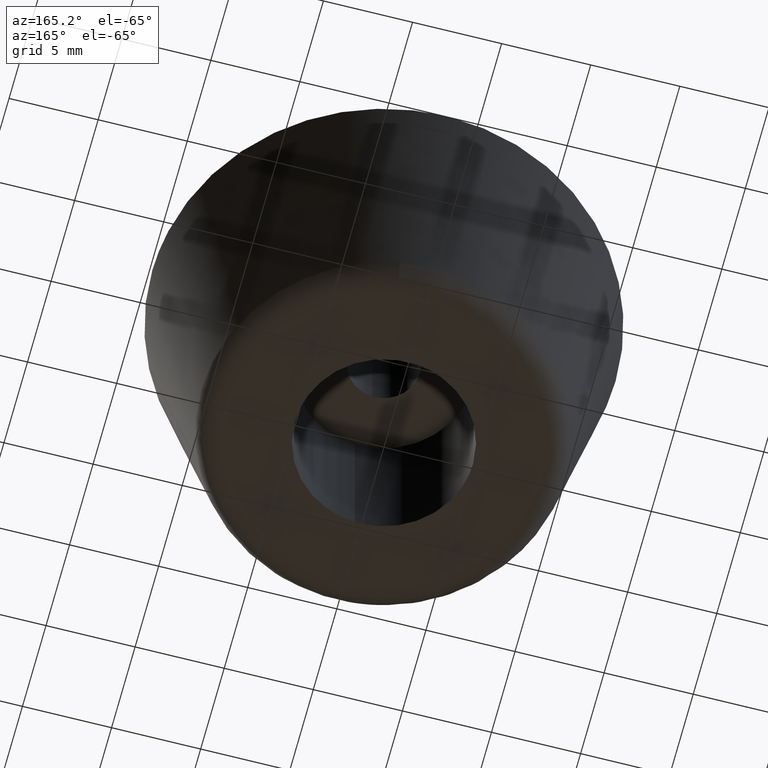
[diagram: clean part render]
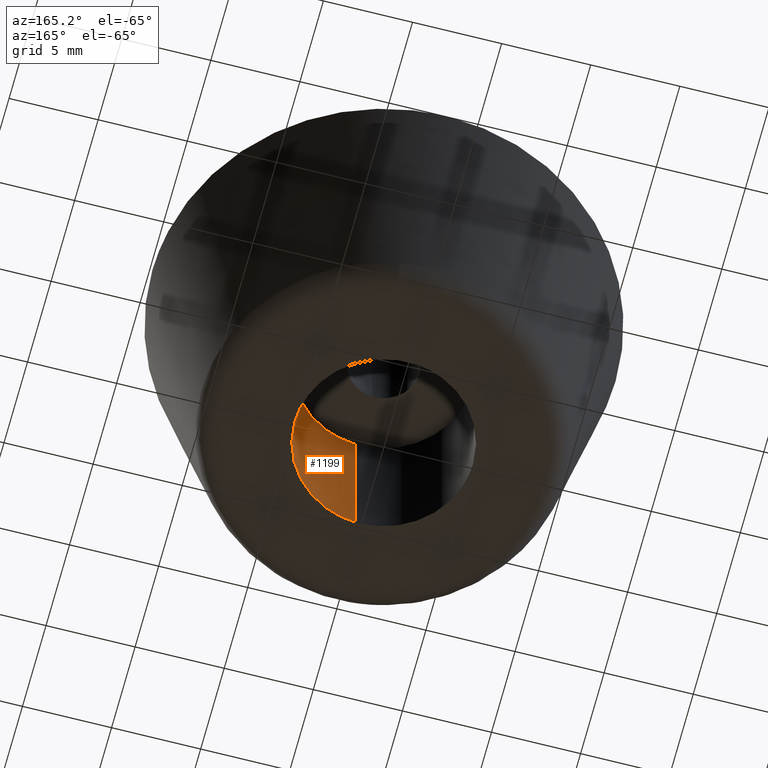
[diagram: same view with one face highlighted and labeled with its STEP entity id]
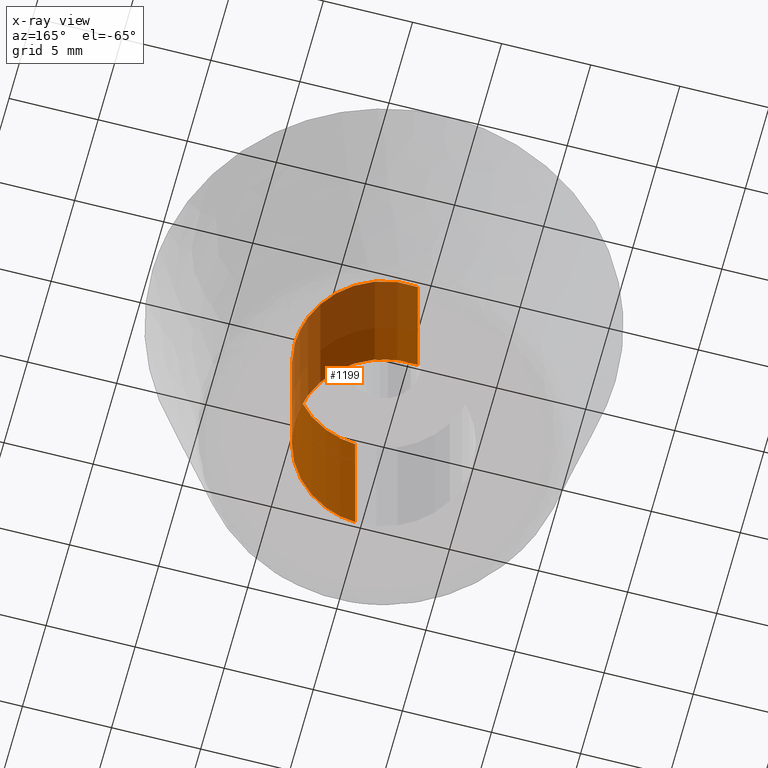
[diagram: x-ray of the same camera — body ghosted, the highlighted face saturated]
A machine part, auxiliary view. The second image highlights one B-rep face of the part: STEP entity #1199.
The next image is the same camera in x-ray: the body ghosted, the highlighted face saturated — about 40% of this face is hidden behind the body in this view.
In plain terms, the highlighted face is a freeform B-spline surface patch.
Its self-contained STEP definition (entity closure, byte-faithful):
#1097=CARTESIAN_POINT('',(-0.590171173283792,4.965047631818332,10.250000000000002));
#1098=CARTESIAN_POINT('',(-0.448073643189888,4.981938077243028,10.250000000000005));
#1099=CARTESIAN_POINT('',(-0.305242697674285,4.990673992109334,10.250000000000000));
#1100=CARTESIAN_POINT('',(4.685431294435048,5.295916689783620,10.250000000000002));
#1101=CARTESIAN_POINT('',(4.990673992109334,0.305242697674285,10.250000000000000));
#1102=CARTESIAN_POINT('',(5.295916689783620,-4.685431294435048,10.250000000000002));
#1103=CARTESIAN_POINT('',(0.305242697674285,-4.990673992109334,10.250000000000000));
#1104=CARTESIAN_POINT('',(-0.590171173283792,4.965047631818332,-0.256250000000000));
#1105=CARTESIAN_POINT('',(-0.448073643189888,4.981938077243028,-0.256250000000000));
#1106=CARTESIAN_POINT('',(-0.305242697674285,4.990673992109334,-0.256250000000000));
#1107=CARTESIAN_POINT('',(4.685431294435048,5.295916689783620,-0.256250000000000));
#1108=CARTESIAN_POINT('',(4.990673992109334,0.305242697674285,-0.256250000000000));
#1109=CARTESIAN_POINT('',(5.295916689783620,-4.685431294435048,-0.256250000000000));
#1110=CARTESIAN_POINT('',(0.305242697674285,-4.990673992109334,-0.256250000000000));
#1118=(BOUNDED_SURFACE()B_SPLINE_SURFACE(2,1,((#1097,#1104),(#1098,#1105),(#1099,#1106),(#1100,#1107),(#1101,#1108),(#1102,#1109),(#1103,#1110)),.UNSPECIFIED.,.F.,.F.,.U.)B_SPLINE_SURFACE_WITH_KNOTS((3,2,2,3),(2,2),(0.0,0.331370849898476,8.615642097360375,16.899913344822270),(0.0,10.506250000000000),.UNSPECIFIED.)GEOMETRIC_REPRESENTATION_ITEM()RATIONAL_B_SPLINE_SURFACE(((0.977505800795127,0.977505800795127),(0.988284271247462,0.988284271247462),(1.0,1.0),(0.707106781186548,0.707106781186548),(1.0,1.0),(0.707106781186548,0.707106781186548),(1.0,1.0)))REPRESENTATION_ITEM('')SURFACE());
#1119=CARTESIAN_POINT('',(-0.590164254953731,4.965048454156954,2.889118E-014));
#1120=VERTEX_POINT('',#1119);
#1121=CARTESIAN_POINT('',(5.0,0.0,0.0));
#1122=VERTEX_POINT('',#1121);
#1123=CARTESIAN_POINT('',(-0.590164254953731,4.965048454156954,2.889118E-014));
#1124=CARTESIAN_POINT('',(-0.296117102525392,5.0,0.0));
#1125=CARTESIAN_POINT('',(0.0,5.0,0.0));
#1126=CARTESIAN_POINT('',(5.000000000000001,5.000000000000001,0.0));
#1127=CARTESIAN_POINT('',(5.0,0.0,0.0));
#1135=(BOUNDED_CURVE()B_SPLINE_CURVE(2,(#1123,#1124,#1125,#1126,#1127),.UNSPECIFIED.,.F.,.U.)B_SPLINE_CURVE_WITH_KNOTS((3,2,3),(0.229562709005904,0.250000000000000,0.500000000000000),.UNSPECIFIED.)CURVE()GEOMETRIC_REPRESENTATION_ITEM()RATIONAL_B_SPLINE_CURVE((0.956027215758951,0.976056224227648,1.0,0.707106781186548,1.0))REPRESENTATION_ITEM(''));
#1136=EDGE_CURVE('',#1120,#1122,#1135,.T.);
#1137=ORIENTED_EDGE('',*,*,#1136,.T.);
#1138=CARTESIAN_POINT('',(0.305239861892635,-4.990674165551553,-7.258083E-015));
#1139=VERTEX_POINT('',#1138);
#1140=CARTESIAN_POINT('',(5.0,0.0,0.0));
#1141=CARTESIAN_POINT('',(4.999999999999999,-4.703533012145370,0.0));
#1142=CARTESIAN_POINT('',(0.305239861892635,-4.990674165551553,-7.258083E-015));
#1150=(BOUNDED_CURVE()B_SPLINE_CURVE(2,(#1140,#1141,#1142),.UNSPECIFIED.,.F.,.U.)B_SPLINE_CURVE_WITH_KNOTS((3,3),(0.500000000000000,0.739333060285851),.UNSPECIFIED.)CURVE()GEOMETRIC_REPRESENTATION_ITEM()RATIONAL_B_SPLINE_CURVE((1.0,0.719603878417612,0.976072251799996))REPRESENTATION_ITEM(''));
#1151=EDGE_CURVE('',#1122,#1139,#1150,.T.);
#1152=ORIENTED_EDGE('',*,*,#1151,.T.);
#1153=CARTESIAN_POINT('',(0.305239896930285,-4.990674163408597,10.0));
#1154=VERTEX_POINT('',#1153);
#1155=CARTESIAN_POINT('',(0.305239896930285,-4.990674163408597,10.0));
#1156=CARTESIAN_POINT('',(0.305239861892635,-4.990674165551553,-7.258083E-015));
#1157=QUASI_UNIFORM_CURVE('',1,(#1155,#1156),.UNSPECIFIED.,.F.,.U.);
#1158=EDGE_CURVE('',#1154,#1139,#1157,.T.);
#1159=ORIENTED_EDGE('',*,*,#1158,.F.);
#1160=CARTESIAN_POINT('',(5.0,0.0,10.0));
#1161=VERTEX_POINT('',#1160);
#1162=CARTESIAN_POINT('',(5.0,0.0,10.0));
#1163=CARTESIAN_POINT('',(5.000000000000001,-4.703532979061928,10.0));
#1164=CARTESIAN_POINT('',(0.305239896930285,-4.990674163408597,10.0));
#1172=(BOUNDED_CURVE()B_SPLINE_CURVE(2,(#1162,#1163,#1164),.UNSPECIFIED.,.F.,.U.)B_SPLINE_CURVE_WITH_KNOTS((3,3),(0.500000000000000,0.739333059074465),.UNSPECIFIED.)CURVE()GEOMETRIC_REPRESENTATION_ITEM()RATIONAL_B_SPLINE_CURVE((1.0,0.719603879836839,0.976072249203762))REPRESENTATION_ITEM(''));
#1173=EDGE_CURVE('',#1161,#1154,#1172,.T.);
#1174=ORIENTED_EDGE('',*,*,#1173,.F.);
#1175=CARTESIAN_POINT('',(-0.590164340249273,4.965048444018525,10.0));
#1176=VERTEX_POINT('',#1175);
#1177=CARTESIAN_POINT('',(-0.590164340249273,4.965048444018525,9.999999999999998));
#1178=CARTESIAN_POINT('',(-0.296117145624012,5.0,10.0));
#1179=CARTESIAN_POINT('',(0.0,5.0,10.0));
#1180=CARTESIAN_POINT('',(5.000000000000001,5.000000000000001,10.000000000000002));
#1181=CARTESIAN_POINT('',(5.0,0.0,10.0));
#1189=(BOUNDED_CURVE()B_SPLINE_CURVE(2,(#1177,#1178,#1179,#1180,#1181),.UNSPECIFIED.,.F.,.U.)B_SPLINE_CURVE_WITH_KNOTS((3,2,3),(0.229562706102563,0.250000000000000,0.500000000000000),.UNSPECIFIED.)CURVE()GEOMETRIC_REPRESENTATION_ITEM()RATIONAL_B_SPLINE_CURVE((0.956027210068271,0.976056220826172,1.0,0.707106781186548,1.0))REPRESENTATION_ITEM(''));
#1190=EDGE_CURVE('',#1176,#1161,#1189,.T.);
#1191=ORIENTED_EDGE('',*,*,#1190,.F.);
#1192=CARTESIAN_POINT('',(-0.590164340249273,4.965048444018525,10.0));
#1193=CARTESIAN_POINT('',(-0.590164254953731,4.965048454156954,2.889118E-014));
#1194=QUASI_UNIFORM_CURVE('',1,(#1192,#1193),.UNSPECIFIED.,.F.,.U.);
#1195=EDGE_CURVE('',#1176,#1120,#1194,.T.);
#1196=ORIENTED_EDGE('',*,*,#1195,.T.);
#1197=EDGE_LOOP('',(#1137,#1152,#1159,#1174,#1191,#1196));
#1198=FACE_OUTER_BOUND('',#1197,.T.);
#1199=ADVANCED_FACE('',(#1198),#1118,.F.);